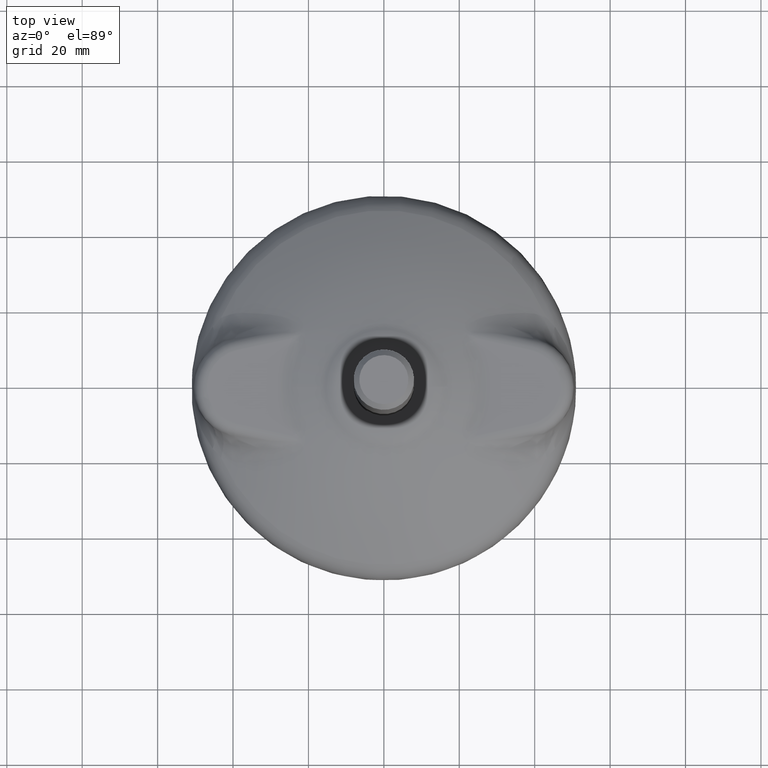
[diagram: clean part render]
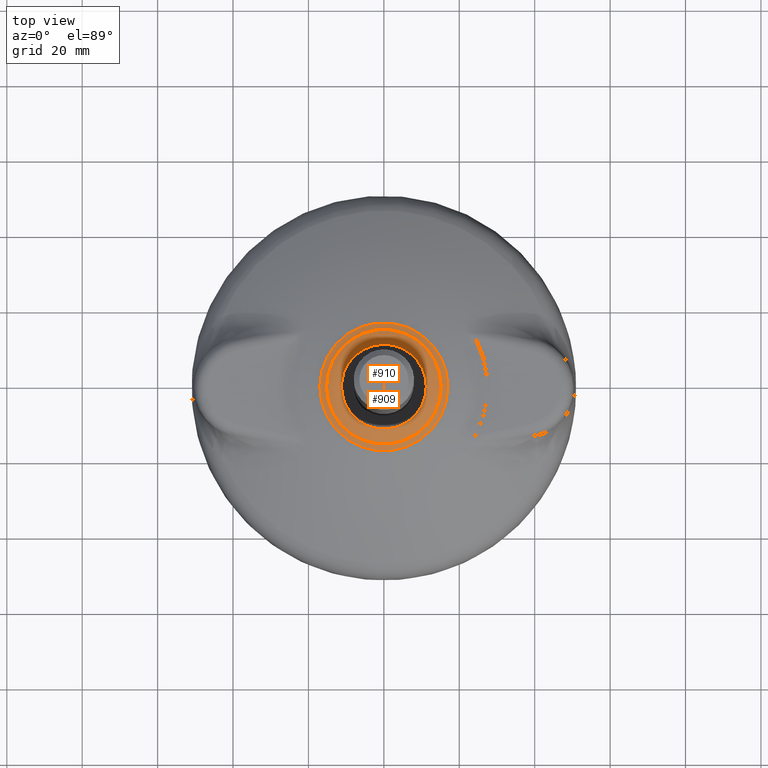
[diagram: same view with one multi-face feature highlighted, each face labeled with its STEP entity id]
A machine part, top view. The highlighted faces form ONE feature: a constant-radius fillet chain: 2 tangent blend faces with common blend radius 7.5 mm. The faces share edges in the B-rep.
Their STEP definitions:
[1] entity #909 (Torus):
#40=TOROIDAL_SURFACE('',#1020,18.7330000149311,7.00000018417376);
#161=FACE_OUTER_BOUND('',#227,.T.);
#227=EDGE_LOOP('',(#649,#650,#651,#652,#653));
#294=CIRCLE('',#1007,16.986756733163);
#295=CIRCLE('',#1008,16.986756733163);
#301=CIRCLE('',#1021,7.00000018417376);
#302=CIRCLE('',#1022,15.2112618341804);
#388=VERTEX_POINT('',#2828);
#389=VERTEX_POINT('',#2832);
#401=VERTEX_POINT('',#3458);
#479=EDGE_CURVE('',#389,#388,#294,.T.);
#480=EDGE_CURVE('',#388,#389,#295,.T.);
#497=EDGE_CURVE('',#389,#401,#301,.T.);
#498=EDGE_CURVE('',#401,#401,#302,.T.);
#649=ORIENTED_EDGE('',*,*,#479,.T.);
#650=ORIENTED_EDGE('',*,*,#480,.T.);
#651=ORIENTED_EDGE('',*,*,#497,.T.);
#652=ORIENTED_EDGE('',*,*,#498,.F.);
#653=ORIENTED_EDGE('',*,*,#497,.F.);
#909=ADVANCED_FACE('',(#161),#40,.F.);
#1007=AXIS2_PLACEMENT_3D('',#2833,#1158,#1159);
#1008=AXIS2_PLACEMENT_3D('',#2834,#1160,#1161);
#1020=AXIS2_PLACEMENT_3D('',#3457,#1187,#1188);
#1021=AXIS2_PLACEMENT_3D('',#3459,#1189,#1190);
#1022=AXIS2_PLACEMENT_3D('',#3460,#1191,#1192);
#1158=DIRECTION('center_axis',(0.,0.,1.));
#1159=DIRECTION('ref_axis',(0.,-1.,0.));
#1160=DIRECTION('center_axis',(0.,0.,1.));
#1161=DIRECTION('ref_axis',(0.,-1.,0.));
#1187=DIRECTION('center_axis',(-1.76415966091554E-10,-6.76610513405186E-10,
-1.));
#1188=DIRECTION('ref_axis',(-1.,0.,1.76416055145721E-10));
#1189=DIRECTION('center_axis',(1.22345315018475E-16,1.,-6.76610513405186E-10));
#1190=DIRECTION('ref_axis',(1.,-1.22464679882707E-16,-1.76415917085112E-10));
#1191=DIRECTION('center_axis',(0.,0.,1.));
#1192=DIRECTION('ref_axis',(0.,-1.,0.));
#2828=CARTESIAN_POINT('',(-16.986756733163,-1.33366440308468E-8,20.7213177423081));
#2832=CARTESIAN_POINT('',(16.986756733163,-3.21105431578881E-7,20.7213177423081));
#2833=CARTESIAN_POINT('Origin',(0.,4.854811E-14,20.7213177423081));
#2834=CARTESIAN_POINT('Origin',(0.,4.854811E-14,20.7213177423081));
#3457=CARTESIAN_POINT('Origin',(1.39751921493514E-8,-3.16518896648077E-7,
27.5000076409788));
#3458=CARTESIAN_POINT('',(15.2112618341804,-3.20612104815991E-7,21.4504322563353));
#3459=CARTESIAN_POINT('Origin',(18.7330000289063,-3.16518898942208E-7,27.500007637674));
#3460=CARTESIAN_POINT('Origin',(0.,5.025636E-14,21.4504322563353));
[2] entity #910 (Torus):
#41=TOROIDAL_SURFACE('',#1023,11.2499998827759,8.00000043905746);
#162=FACE_OUTER_BOUND('',#228,.T.);
#228=EDGE_LOOP('',(#654,#655,#656,#657,#658));
#302=CIRCLE('',#1022,15.2112618341804);
#303=CIRCLE('',#1024,8.00000043905746);
#304=CIRCLE('',#1025,11.2500000000003);
#305=CIRCLE('',#1026,11.2500000000003);
#401=VERTEX_POINT('',#3458);
#402=VERTEX_POINT('',#3462);
#403=VERTEX_POINT('',#3464);
#498=EDGE_CURVE('',#401,#401,#302,.T.);
#499=EDGE_CURVE('',#401,#402,#303,.T.);
#500=EDGE_CURVE('',#403,#402,#304,.T.);
#501=EDGE_CURVE('',#402,#403,#305,.T.);
#654=ORIENTED_EDGE('',*,*,#498,.T.);
#655=ORIENTED_EDGE('',*,*,#499,.T.);
#656=ORIENTED_EDGE('',*,*,#500,.F.);
#657=ORIENTED_EDGE('',*,*,#501,.F.);
#658=ORIENTED_EDGE('',*,*,#499,.F.);
#910=ADVANCED_FACE('',(#162),#41,.T.);
#1022=AXIS2_PLACEMENT_3D('',#3460,#1191,#1192);
#1023=AXIS2_PLACEMENT_3D('',#3461,#1193,#1194);
#1024=AXIS2_PLACEMENT_3D('',#3463,#1195,#1196);
#1025=AXIS2_PLACEMENT_3D('',#3465,#1197,#1198);
#1026=AXIS2_PLACEMENT_3D('',#3466,#1199,#1200);
#1191=DIRECTION('center_axis',(0.,0.,1.));
#1192=DIRECTION('ref_axis',(0.,-1.,0.));
#1193=DIRECTION('center_axis',(-6.39663951077299E-10,-3.05665202144664E-9,
-1.));
#1194=DIRECTION('ref_axis',(-1.,0.,6.39663872495078E-10));
#1195=DIRECTION('center_axis',(-1.20509451552836E-16,-1.,3.05665202144664E-9));
#1196=DIRECTION('ref_axis',(1.,-1.2246468149226E-16,-6.39663895564647E-10));
#1197=DIRECTION('center_axis',(0.,0.,1.));
#1198=DIRECTION('ref_axis',(0.,-1.,0.));
#1199=DIRECTION('center_axis',(0.,0.,1.));
#1200=DIRECTION('ref_axis',(0.,-1.,0.));
#3458=CARTESIAN_POINT('',(15.2112618341804,-3.20612104815991E-7,21.4504322563353));
#3460=CARTESIAN_POINT('Origin',(0.,5.025636E-14,21.4504322563353));
#3461=CARTESIAN_POINT('Origin',(5.54683486295171E-8,-3.20274714527002E-7,
14.5000069932637));
#3462=CARTESIAN_POINT('',(11.2500000000003,-2.95821498389337E-7,22.5000074721176));
#3463=CARTESIAN_POINT('Origin',(11.2499999382442,-3.2027471590473E-7,14.5000069860675));
#3464=CARTESIAN_POINT('',(-4.68668781609511E-17,11.2500000000004,22.5000074721176));
#3465=CARTESIAN_POINT('Origin',(0.,5.271542E-14,22.5000074721176));
#3466=CARTESIAN_POINT('Origin',(0.,5.271542E-14,22.5000074721176));